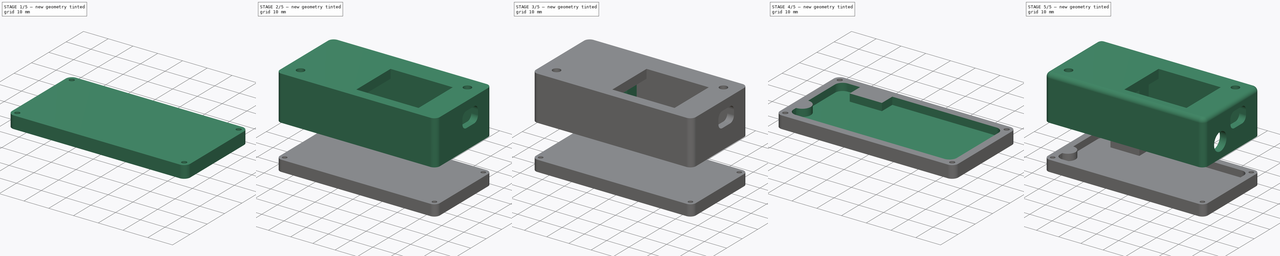
[diagram: build sequence overview — one tinted view per stage of 5, left to right]
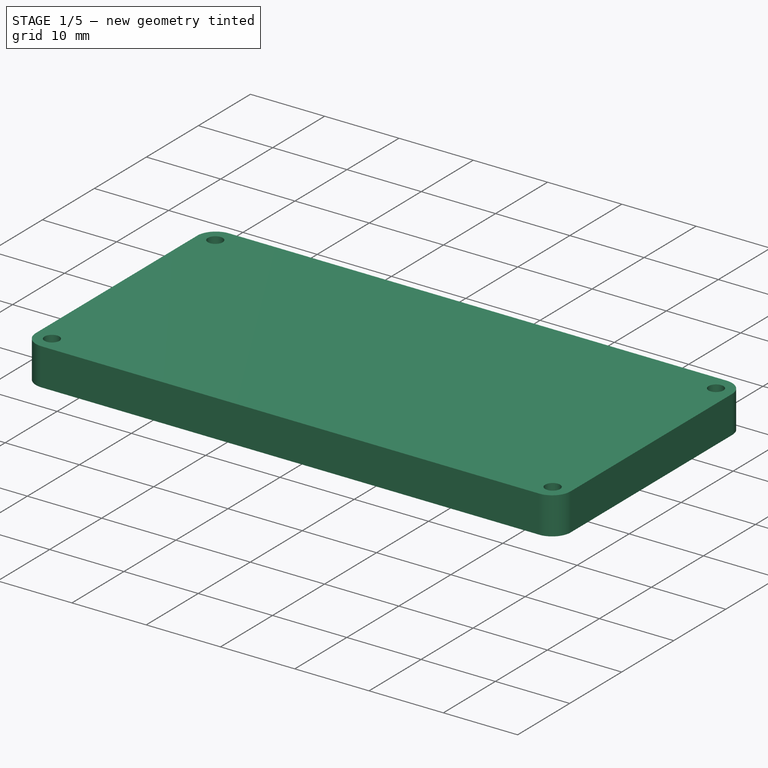
[diagram: stage 1 of 5 — iso view after this stage's code; geometry added in this stage tinted green]
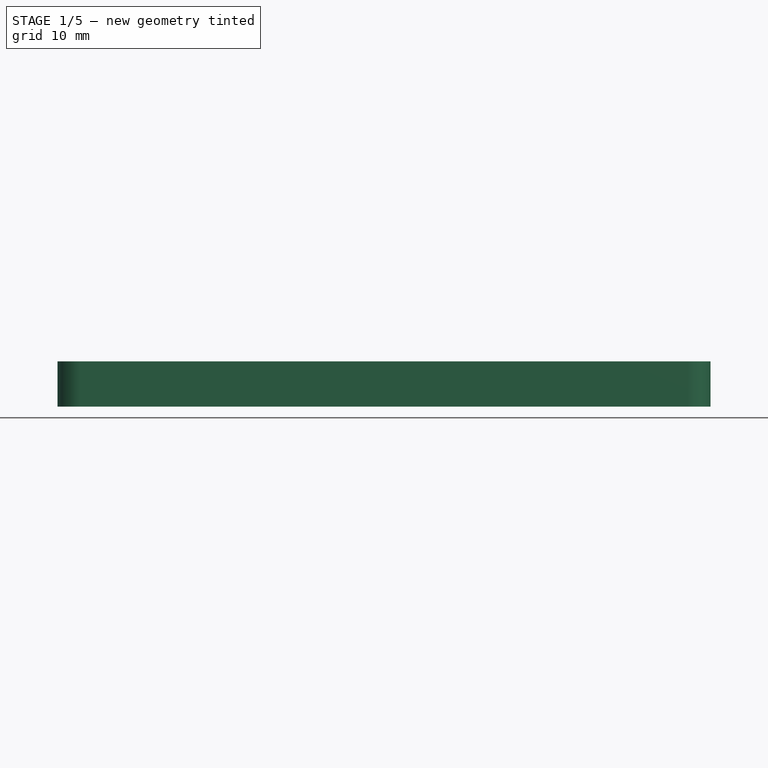
[diagram: stage 1 of 5 — front view after this stage's code; geometry added in this stage tinted green]
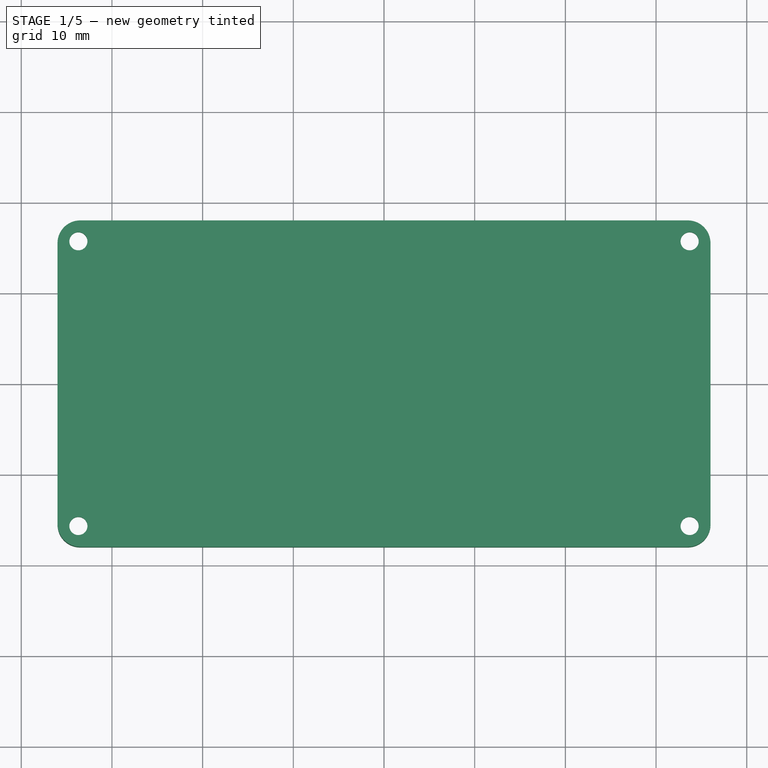
[diagram: stage 1 of 5 — top view after this stage's code; geometry added in this stage tinted green]
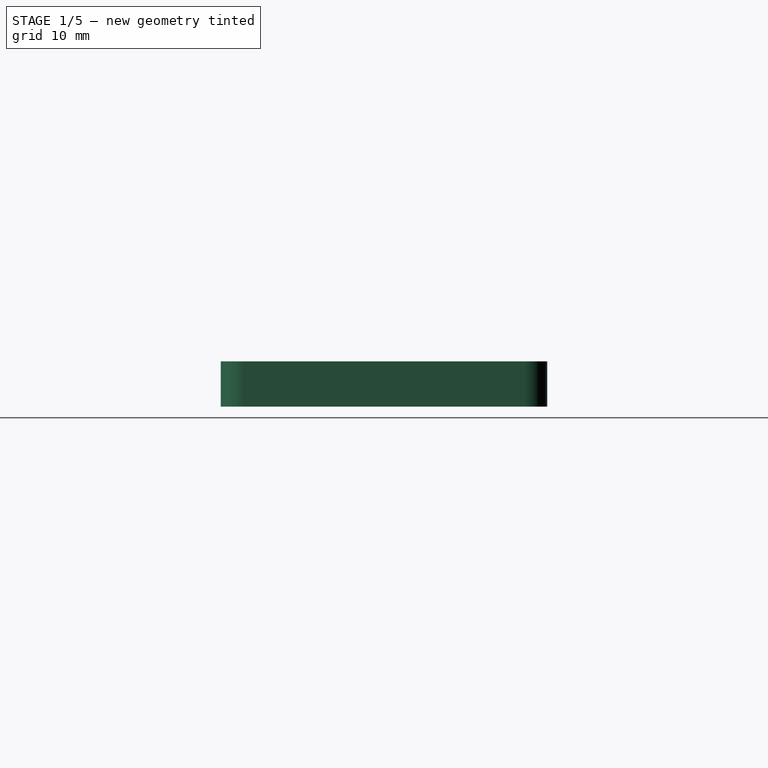
[diagram: stage 1 of 5 — right view after this stage's code; geometry added in this stage tinted green]
FCSTD DOCUMENT  (FreeCAD 0.19R21329 (Git))
Label: LEDLightsBox
License: All rights reserved
LicenseURL: http://en.wikipedia.org/wiki/All_rights_reserved
objects: Sketcher::SketchObject×14, PartDesign::Pocket×11, PartDesign::ShapeBinder×5, PartDesign::Pad×3, PartDesign::Body×2, Part::Fillet×2, Spreadsheet::Sheet×1, Part::Chamfer×1
note: 52 computed .brp shape members not serialized (recipe doc carries the construction recipe); baked Part::Feature solids carry a one-line shape summary decoded from their .brp

FEATURE [PartDesign::Body] Body
  Group = -> [Pad,Pocket,Pocket001,Sketch003,Pocket002,Pocket003,Pocket004,Pad001,Pocket005,Pocket006,Pocket007]
  Origin = -> Origin
  Tip = -> Pocket007
FEATURE [PartDesign::ShapeBinder] ShapeBinder
  Support = -> [Sketch001]
  TraceSupport = false
FEATURE [Sketcher::SketchObject] Sketch010  label="Sketch_LID_Exterior"
  AttachmentOffset = pos=(0,0,-20) rot=(0,0,1;0rad)
  ExternalGeometry = -> [ShapeBinder]
  MapMode = 5
  Placement = pos=(0,0,-20) rot=(0,0,1;0rad)
  Support = -> [XY_Plane001]
  sketch-geometry (8):
    g0: LineSegment StartX=-33.5 StartY=18 StartZ=0 EndX=33.5 EndY=18 EndZ=0
    g1: LineSegment StartX=36 StartY=15.5 StartZ=0 EndX=36 EndY=-15.5 EndZ=0
    g2: LineSegment StartX=33.5 StartY=-18 StartZ=0 EndX=-33.5 EndY=-18 EndZ=0
    g3: LineSegment StartX=-36 StartY=-15.5 StartZ=0 EndX=-36 EndY=15.5 EndZ=0
    g4: ArcOfCircle CenterX=-33.5 CenterY=15.5 CenterZ=0 NormalX=0 NormalY=0 NormalZ=1 AngleXU=0 Radius=2.5 StartAngle=1.5708 EndAngle=3.14159
    g5: ArcOfCircle CenterX=-33.5 CenterY=-15.5 CenterZ=0 NormalX=0 NormalY=0 NormalZ=1 AngleXU=0 Radius=2.5 StartAngle=3.14159 EndAngle=4.71239
    g6: ArcOfCircle CenterX=33.5 CenterY=-15.5 CenterZ=0 NormalX=0 NormalY=0 NormalZ=1 AngleXU=0 Radius=2.5 StartAngle=4.71239 EndAngle=6.28319
    g7: ArcOfCircle CenterX=33.5 CenterY=15.5 CenterZ=0 NormalX=0 NormalY=0 NormalZ=1 AngleXU=0 Radius=2.5 StartAngle=5e-16 EndAngle=1.5708
  constraints (15):
    c: Tangent(g0,g4) = 1.5708
    c: Tangent(g3,g4) = 1.5708
    c: Tangent(g3,g5) = 1.5708
    c: Tangent(g2,g5) = 1.5708
    c: Tangent(g2,g6) = 1.5708
    c: Tangent(g1,g6) = 1.5708
    c: Tangent(g1,g7) = 1.5708
    c: Tangent(g0,g7) = 1.5708
    c: Coincident(g0,g-4)
    c: Coincident(g3,g-5)
    c: Coincident(g3,g-6)
    c: Coincident(g2,g-7)
    c: Coincident(g2,g-8)
    c: Coincident(g1,g-9)
    c: Coincident(g1,g-10)
FEATURE [PartDesign::Pad] Pad002
  Length = 5
  Length2 = 100
  Profile = -> Sketch010
  Type = 0
FEATURE [PartDesign::ShapeBinder] ShapeBinder001
  Support = -> [Sketch]
  TraceSupport = false
FEATURE [PartDesign::ShapeBinder] ShapeBinder002
  Support = -> [Pocket007]
  TraceSupport = false
FEATURE [PartDesign::ShapeBinder] ShapeBinder003
  Support = -> [Pocket007]
  TraceSupport = false
FEATURE [Sketcher::SketchObject] Sketch011  label="Sketch_Lid_MainFace"
  ExternalGeometry = -> [ShapeBinder001,ShapeBinder002,ShapeBinder003]
  MapMode = 5
  Placement = pos=(0,0,-15) rot=(0,0,1;0rad)
  Support = -> [Pad002]
  sketch-geometry (14):
    g0: LineSegment StartX=33 StartY=12 StartZ=0 EndX=33 EndY=-12 EndZ=0
    g1: LineSegment StartX=30 StartY=-15 StartZ=0 EndX=-30 EndY=-15 EndZ=0
    g2: ArcOfCircle CenterX=-30.0134 CenterY=12.0135 CenterZ=0 NormalX=0 NormalY=0 NormalZ=1 AngleXU=0 Radius=2.98658 StartAngle=1.56629 EndAngle=3.1461
    g3: ArcOfCircle CenterX=-30 CenterY=-12 CenterZ=0 NormalX=0 NormalY=0 NormalZ=1 AngleXU=0 Radius=3 StartAngle=3.14159 EndAngle=4.71239
    g4: ArcOfCircle CenterX=30 CenterY=-12 CenterZ=0 NormalX=0 NormalY=0 NormalZ=1 AngleXU=0 Radius=3 StartAngle=4.71239 EndAngle=6.28319
    g5: ArcOfCircle CenterX=30 CenterY=12 CenterZ=0 NormalX=0 NormalY=0 NormalZ=1 AngleXU=0 Radius=3 StartAngle=2.6e-15 EndAngle=1.5708
    g6: LineSegment StartX=-25 StartY=15 StartZ=0 EndX=-25 EndY=9 EndZ=0
    g7: LineSegment StartX=-25 StartY=9 StartZ=0 EndX=-12 EndY=9 EndZ=0
    g8: LineSegment StartX=-12 StartY=9 StartZ=0 EndX=-12 EndY=15 EndZ=0
    g9: LineSegment StartX=-12 StartY=15 StartZ=0 EndX=30 EndY=15 EndZ=0
    g10: LineSegment StartX=-33 StartY=12 StartZ=0 EndX=-33 EndY=-3.5 EndZ=0
    g11: LineSegment StartX=-33 StartY=-10.5 StartZ=0 EndX=-33 EndY=-12 EndZ=0
    g12: ArcOfCircle CenterX=-33 CenterY=-7 CenterZ=0 NormalX=0 NormalY=0 NormalZ=1 AngleXU=0 Radius=3.5 StartAngle=4.71239 EndAngle=7.85398
    g13: LineSegment StartX=-30 StartY=15 StartZ=0 EndX=-25 EndY=15 EndZ=0
  constraints (29):
    c: Coincident(g-4,g2) = 1.5708
    c: Coincident(g-5,g2) = 1.5708
    c: Coincident(g-6,g3) = 1.5708
    c: Tangent(g1,g3) = 1.5708
    c: Tangent(g1,g4) = 1.5708
    c: Tangent(g0,g4) = 1.5708
    c: Tangent(g0,g5) = 1.5708
    c: Coincident(g1,g-7)
    c: Coincident(g1,g-8)
    c: Coincident(g6,g7)
    c: Coincident(g7,g8)
    c: Coincident(g-13,g7)
    c: Coincident(g6,g-13)
    c: Coincident(g6,g-12)
    c: Coincident(g8,g-11)
    c: Coincident(g0,g-9)
    c: Coincident(g0,g-9)
    c: Coincident(g5,g-3)
    c: Coincident(g9,g5)
    c: Coincident(g10,g2)
    c: Coincident(g11,g3)
    c: Coincident(g12,g11)
    c: Coincident(g10,g-14)
    c: Coincident(g12,g10)
    c: Coincident(g11,g-15)
    c: PointOnObject(g12,g-5)
    c: Coincident(g13,g2)
    c: Coincident(g13,g6)
    c: Coincident(g9,g8)
FEATURE [PartDesign::ShapeBinder] ShapeBinder004
  Support = -> [Sketch005]
  TraceSupport = false
FEATURE [Sketcher::SketchObject] Sketch012  label="Sketch_LID_ScrewHoles"
  ExternalGeometry = -> [ShapeBinder004]
  Support = -> [Pad002]
  sketch-geometry (4):
    g0: Circle CenterX=-33.7 CenterY=15.7 CenterZ=0 NormalX=0 NormalY=0 NormalZ=1 AngleXU=0 Radius=1
    g1: Circle CenterX=33.7 CenterY=15.7 CenterZ=0 NormalX=0 NormalY=0 NormalZ=1 AngleXU=0 Radius=1
    g2: Circle CenterX=33.7 CenterY=-15.7 CenterZ=0 NormalX=0 NormalY=0 NormalZ=1 AngleXU=0 Radius=1
    g3: Circle CenterX=-33.7 CenterY=-15.7 CenterZ=0 NormalX=0 NormalY=0 NormalZ=1 AngleXU=0 Radius=1
  constraints (8):
    c: Equal(g0,g-3)
    c: Equal(g1,g-4)
    c: Equal(g-5,g2)
    c: Equal(g3,g-6)
    c: Coincident(g0,g-3)
    c: Coincident(g1,g-4)
    c: Coincident(g2,g-5)
    c: Coincident(g3,g-6)
FEATURE [PartDesign::Pocket] Pocket008
  BaseFeature = -> Pad002
  Length = 5
  Length2 = 100
  Profile = -> Sketch012
  Type = 1
FEATURE [Sketcher::SketchObject] Sketch013  label="Sketch_LID_ScrewCounterisnk"
  ExternalGeometry = -> [Pocket008]
  MapMode = 5
  Placement = pos=(0,0,-20) rot=(1,0,0;3.14159rad)
  Support = -> [Pocket008]
  sketch-geometry (4):
    g0: Circle CenterX=-33.7 CenterY=15.7 CenterZ=0 NormalX=0 NormalY=0 NormalZ=1 AngleXU=0 Radius=2
    g1: Circle CenterX=33.7 CenterY=15.7 CenterZ=0 NormalX=0 NormalY=0 NormalZ=1 AngleXU=0 Radius=2
    g2: Circle CenterX=33.7 CenterY=-15.7 CenterZ=0 NormalX=0 NormalY=0 NormalZ=1 AngleXU=0 Radius=2
    g3: Circle CenterX=-33.7 CenterY=-15.7 CenterZ=0 NormalX=0 NormalY=0 NormalZ=1 AngleXU=0 Radius=2
  constraints (8):
    c: Diameter(g0) = 4
    c: Coincident(g0,g-3)
    c: Equal(g0,g1) = 3
    c: Equal(g0,g2) = 3
    c: Equal(g0,g3) = 3
    c: Coincident(g-4,g1)
    c: Coincident(g-5,g2)
    c: Coincident(g3,g-6)
FEATURE [PartDesign::Pocket] Pocket009
  BaseFeature = -> Pocket008
  Length = 3
  Length2 = 100
  Profile = -> Sketch013
  Type = 0
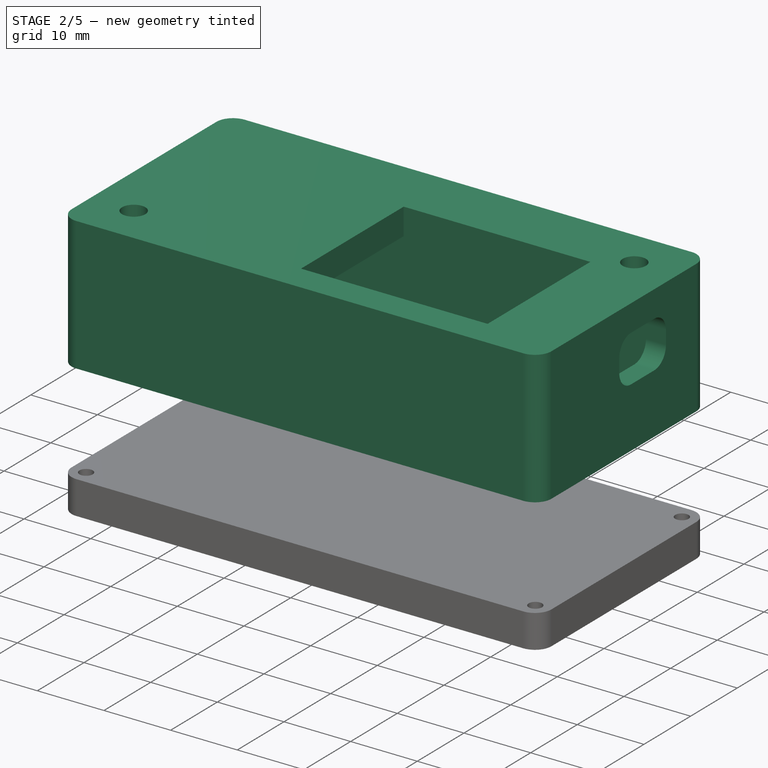
[diagram: stage 2 of 5 — iso view after this stage's code; geometry added in this stage tinted green]
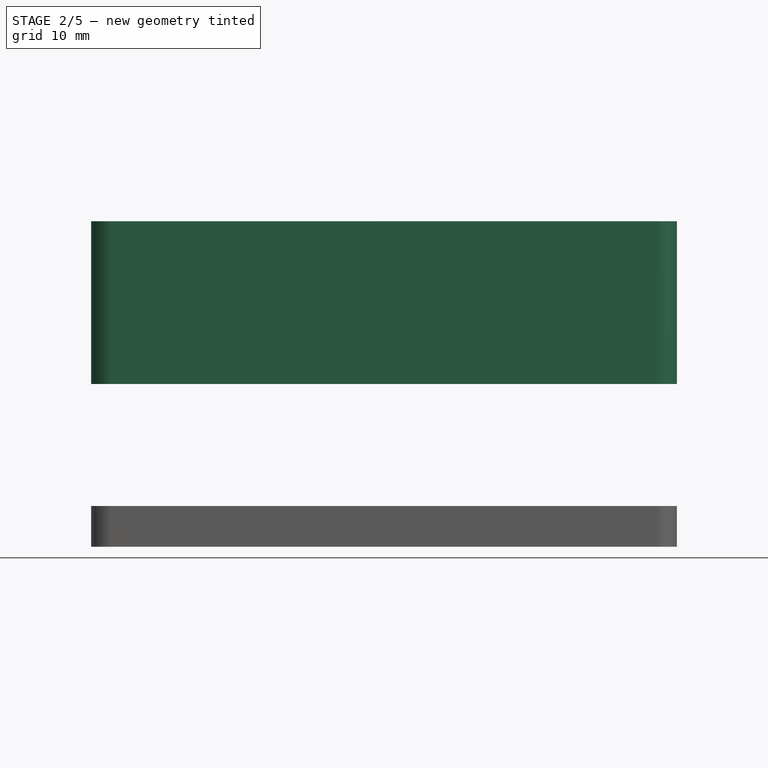
[diagram: stage 2 of 5 — front view after this stage's code; geometry added in this stage tinted green]
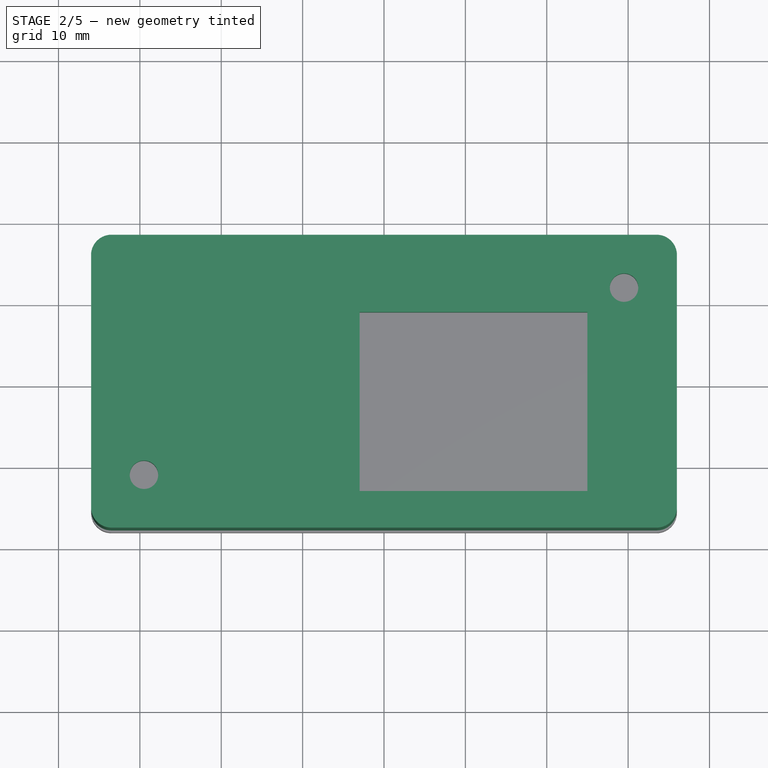
[diagram: stage 2 of 5 — top view after this stage's code; geometry added in this stage tinted green]
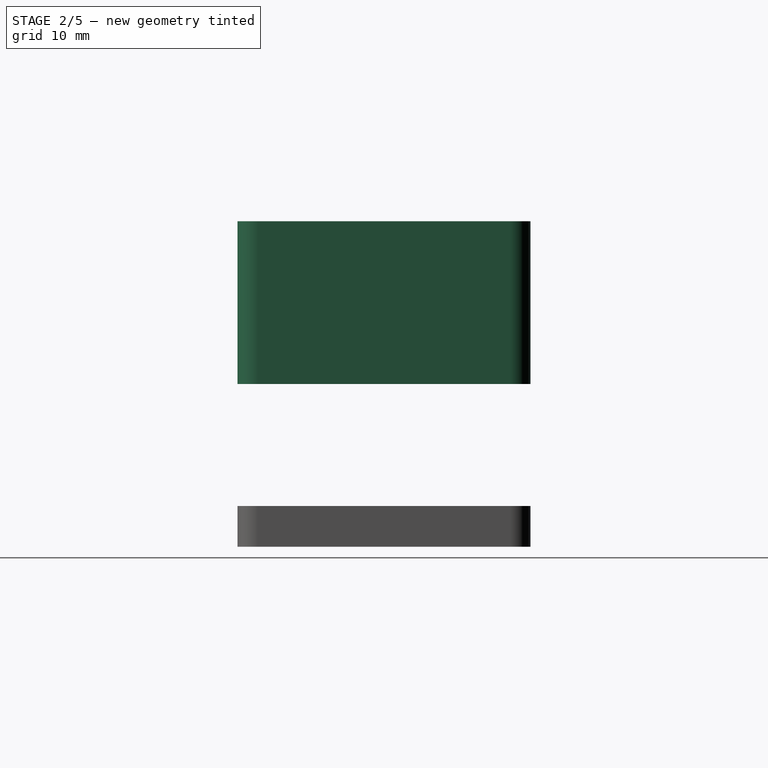
[diagram: stage 2 of 5 — right view after this stage's code; geometry added in this stage tinted green]
FEATURE [Sketcher::SketchObject] Sketch  label="Sketch_MainFace"
  sketch-geometry (8):
    g0: LineSegment StartX=-30 StartY=15 StartZ=0 EndX=30 EndY=15 EndZ=0
    g1: LineSegment StartX=33 StartY=12 StartZ=0 EndX=33 EndY=-12 EndZ=0
    g2: LineSegment StartX=30 StartY=-15 StartZ=0 EndX=-30 EndY=-15 EndZ=0
    g3: LineSegment StartX=-33 StartY=-12 StartZ=0 EndX=-33 EndY=12 EndZ=0
    g4: ArcOfCircle CenterX=-30 CenterY=12 CenterZ=0 NormalX=0 NormalY=0 NormalZ=1 AngleXU=0 Radius=3 StartAngle=1.5708 EndAngle=3.14159
    g5: ArcOfCircle CenterX=30 CenterY=12 CenterZ=0 NormalX=0 NormalY=0 NormalZ=1 AngleXU=0 Radius=3 StartAngle=0 EndAngle=1.5708
    g6: ArcOfCircle CenterX=30 CenterY=-12 CenterZ=0 NormalX=0 NormalY=0 NormalZ=1 AngleXU=0 Radius=3 StartAngle=4.71239 EndAngle=6.28319
    g7: ArcOfCircle CenterX=-30 CenterY=-12 CenterZ=0 NormalX=0 NormalY=0 NormalZ=1 AngleXU=0 Radius=3 StartAngle=3.14159 EndAngle=4.71239
  constraints (18):
    c: Tangent(g0,g4) = 1.5708
    c: Tangent(g3,g4) = 1.5708
    c: Tangent(g0,g5) = 1.5708
    c: Tangent(g1,g5) = 1.5708
    c: Tangent(g2,g6) = 1.5708
    c: Tangent(g1,g6) = 1.5708
    c: Tangent(g2,g7) = 1.5708
    c: Tangent(g3,g7) = 1.5708
    c: Diameter(g4) = 6
    c: Equal(g4,g5)
    c: Equal(g4,g6)
    c: Equal(g4,g7)
    c: Distance(g3,g1) = 66
    c: Distance(g0,g2) = 30
    c: Parallel(g0,g2)
    c: Parallel(g3,g1)
    c: Symmetric(g0,g2,g-1)
    c: Symmetric(g3,g1,g-2)
FEATURE [Sketcher::SketchObject] Sketch001  label="Sketch_Exterior"
  ExternalGeometry = -> [Sketch]
  MapMode = 2
  Support = -> [Sketch]
  sketch-geometry (8):
    g0: LineSegment StartX=-33.5 StartY=18 StartZ=0 EndX=33.5 EndY=18 EndZ=0
    g1: LineSegment StartX=36 StartY=15.5 StartZ=0 EndX=36 EndY=-15.5 EndZ=0
    g2: LineSegment StartX=33.5 StartY=-18 StartZ=0 EndX=-33.5 EndY=-18 EndZ=0
    g3: LineSegment StartX=-36 StartY=-15.5 StartZ=0 EndX=-36 EndY=15.5 EndZ=0
    g4: ArcOfCircle CenterX=-33.5 CenterY=15.5 CenterZ=0 NormalX=0 NormalY=0 NormalZ=1 AngleXU=0 Radius=2.5 StartAngle=1.5708 EndAngle=3.14159
    g5: ArcOfCircle CenterX=33.5 CenterY=15.5 CenterZ=0 NormalX=0 NormalY=0 NormalZ=1 AngleXU=0 Radius=2.5 StartAngle=5e-16 EndAngle=1.5708
    g6: ArcOfCircle CenterX=33.5 CenterY=-15.5 CenterZ=0 NormalX=0 NormalY=0 NormalZ=1 AngleXU=0 Radius=2.5 StartAngle=4.71239 EndAngle=6.28319
    g7: ArcOfCircle CenterX=-33.5 CenterY=-15.5 CenterZ=0 NormalX=0 NormalY=0 NormalZ=1 AngleXU=0 Radius=2.5 StartAngle=3.14159 EndAngle=4.71239
  constraints (18):
    c: Tangent(g0,g4) = 1.5708
    c: Tangent(g3,g4) = 1.5708
    c: Tangent(g0,g5) = 1.5708
    c: Tangent(g1,g5) = 1.5708
    c: Tangent(g1,g6) = 1.5708
    c: Tangent(g2,g6) = 1.5708
    c: Tangent(g2,g7) = 1.5708
    c: Tangent(g3,g7) = 1.5708
    c: Parallel(g0,g-3)
    c: Parallel(g3,g-5)
    c: Parallel(g2,g-7)
    c: Parallel(g-9,g1)
    c: Equal(g4,g6)
    c: Symmetric(g3,g1,g-2)
    c: Symmetric(g2,g0,g-1)
    c: DistanceY(g-10,g0) = 3
    c: DistanceX(g-10,g1) = 3
    c: Diameter(g4) = 5
FEATURE [PartDesign::Pad] Pad
  Length = 20
  Length2 = 100
  Profile = -> Sketch001
  Type = 0
  expr: Length = <<vars>>.height
FEATURE [Spreadsheet::Sheet] Spreadsheet  label="vars"
  cells = A1=height; B1(height)=20
FEATURE [PartDesign::Pocket] Pocket
  BaseFeature = -> Pad
  Length = 16
  Length2 = 100
  Profile = -> Sketch
  Reversed = true
  Type = 0
  expr: Length = <<vars>>.height - 4
FEATURE [Sketcher::SketchObject] Sketch002  label="Sketch_MainFace_Holes"
  AttachmentOffset = pos=(0,0,20) rot=(0,0,1;0rad)
  ExternalGeometry = -> [Sketch]
  MapMode = 2
  Placement = pos=(0,0,20) rot=(0,0,1;0rad)
  Support = -> [Sketch]
  expr: .AttachmentOffset.Base.z = <<vars>>.height
  sketch-geometry (6):
    g0: Circle CenterX=-29.5 CenterY=-11.5 CenterZ=0 NormalX=0 NormalY=0 NormalZ=1 AngleXU=0 Radius=1.75
    g1: Circle CenterX=29.5 CenterY=11.5 CenterZ=0 NormalX=0 NormalY=0 NormalZ=1 AngleXU=0 Radius=1.75
    g2: LineSegment StartX=-3 StartY=8.5 StartZ=0 EndX=25 EndY=8.5 EndZ=0
    g3: LineSegment StartX=25 StartY=8.5 StartZ=0 EndX=25 EndY=-13.5 EndZ=0
    g4: LineSegment StartX=25 StartY=-13.5 StartZ=0 EndX=-3 EndY=-13.5 EndZ=0
    g5: LineSegment StartX=-3 StartY=-13.5 StartZ=0 EndX=-3 EndY=8.5 EndZ=0
  constraints (17):
    c: Diameter(g0) = 3.5
    c: Equal(g0,g1) = 3.5
    c: DistanceX(g0,g1) = 59
    c: DistanceY(g1,g0) = -23
    c: Symmetric(g0,g1,g-1)
    c: Coincident(g2,g3)
    c: Coincident(g3,g4)
    c: Coincident(g4,g5)
    c: Coincident(g5,g2)
    c: Distance(g2) = 28
    c: Distance(g5) = 22
    c: Equal(g2,g4)
    c: Equal(g5,g3)
    c: Perpendicular(g3,g2)
    c: Parallel(g2,g-3)
    c: DistanceX(g3,g1) = 4.5
    c: DistanceY(g-4,g3) = 1.5
FEATURE [PartDesign::Pocket] Pocket001
  BaseFeature = -> Pocket
  Length = 5
  Length2 = 100
  Profile = -> Sketch002
  Type = 2
FEATURE [Sketcher::SketchObject] Sketch003  label="Sketch_USB_Hole"
  ExternalGeometry = -> [Pocket001]
  MapMode = 5
  Placement = pos=(33,0,0) rot=(0.57735,-0.57735,-0.57735;2.0944rad)
  Support = -> [Pocket001]
  sketch-geometry (8):
    g0: LineSegment StartX=-6.5 StartY=16 StartZ=0 EndX=-1.5 EndY=16 EndZ=0
    g1: LineSegment StartX=1 StartY=13.5 StartZ=0 EndX=1 EndY=11.5 EndZ=0
    g2: LineSegment StartX=-1.5 StartY=9 StartZ=0 EndX=-6.5 EndY=9 EndZ=0
    g3: LineSegment StartX=-9 StartY=11.5 StartZ=0 EndX=-9 EndY=13.5 EndZ=0
    g4: ArcOfCircle CenterX=-6.5 CenterY=13.5 CenterZ=0 NormalX=0 NormalY=0 NormalZ=1 AngleXU=0 Radius=2.5 StartAngle=1.5708 EndAngle=3.14159
    g5: ArcOfCircle CenterX=-1.5 CenterY=13.5 CenterZ=0 NormalX=0 NormalY=0 NormalZ=1 AngleXU=0 Radius=2.5 StartAngle=7.2e-15 EndAngle=1.5708
    g6: ArcOfCircle CenterX=-1.5 CenterY=11.5 CenterZ=0 NormalX=0 NormalY=0 NormalZ=1 AngleXU=0 Radius=2.5 StartAngle=4.71239 EndAngle=6.28319
    g7: ArcOfCircle CenterX=-6.5 CenterY=11.5 CenterZ=0 NormalX=0 NormalY=0 NormalZ=1 AngleXU=0 Radius=2.5 StartAngle=3.14159 EndAngle=4.71239
  constraints (20):
    c: Tangent(g0,g4) = 1.5708
    c: Tangent(g3,g4) = 1.5708
    c: Tangent(g0,g5) = 1.5708
    c: Tangent(g1,g5) = 1.5708
    c: Tangent(g1,g6) = 1.5708
    c: Tangent(g2,g6) = 1.5708
    c: Tangent(g2,g7) = 1.5708
    c: Tangent(g3,g7) = 1.5708
    c: Diameter(g4) = 5
    c: Equal(g4,g5)
    c: Equal(g4,g6)
    c: Equal(g4,g7)
    c: Equal(g0,g2)
    c: Equal(g3,g1)
    c: Parallel(g0,g-3)
    c: Perpendicular(g3,g0)
    c: Distance(g3) = 2
    c: Distance(g2) = 5
    c: DistanceX(g-3,g3) = 3
    c: DistanceY(g0,g-3) = 0
FEATURE [PartDesign::Pocket] Pocket002
  BaseFeature = -> Pocket001
  Length = 5
  Length2 = 100
  Profile = -> Sketch003
  Type = 2
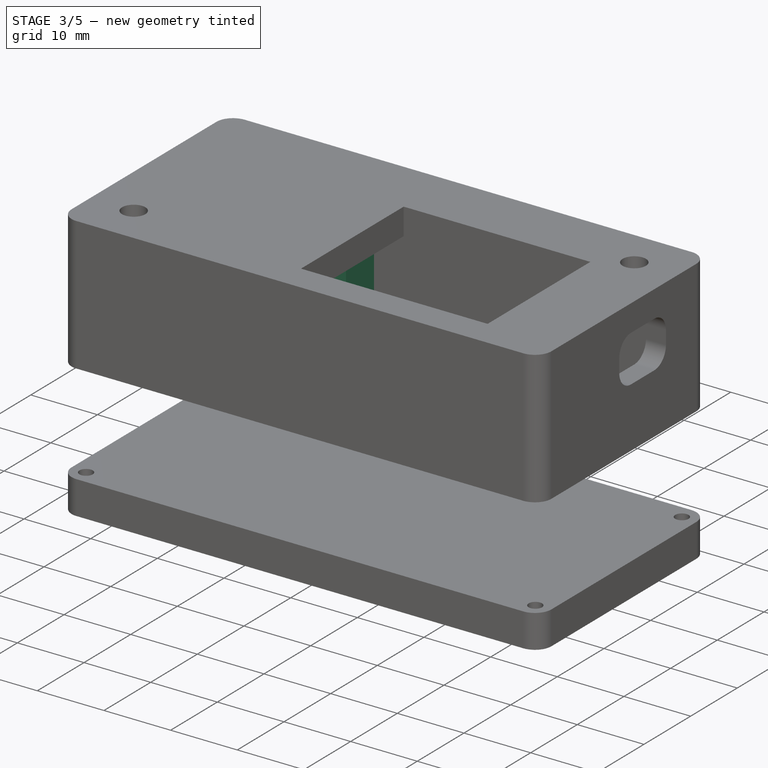
[diagram: stage 3 of 5 — iso view after this stage's code; geometry added in this stage tinted green]
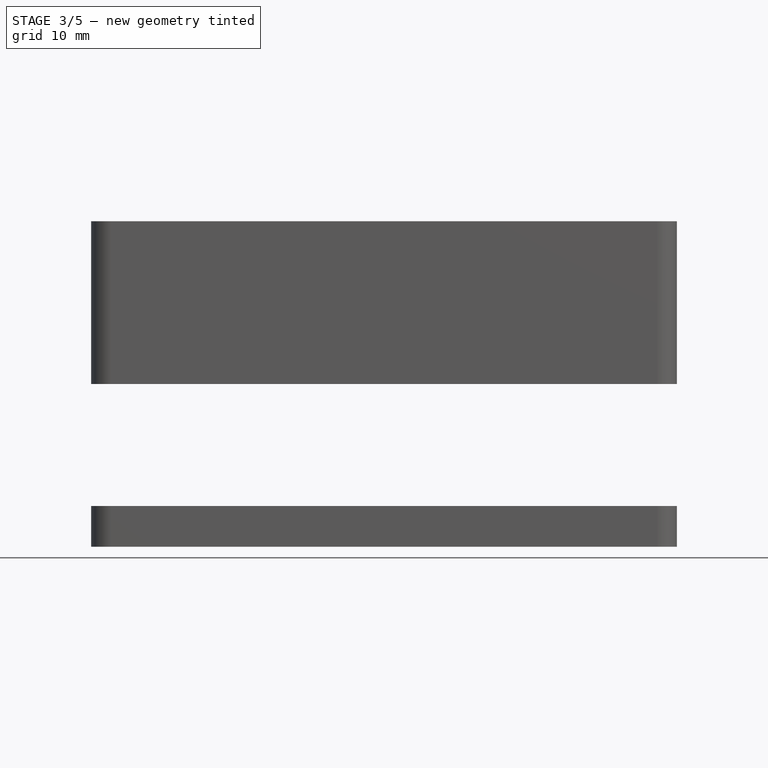
[diagram: stage 3 of 5 — front view after this stage's code; geometry added in this stage tinted green]
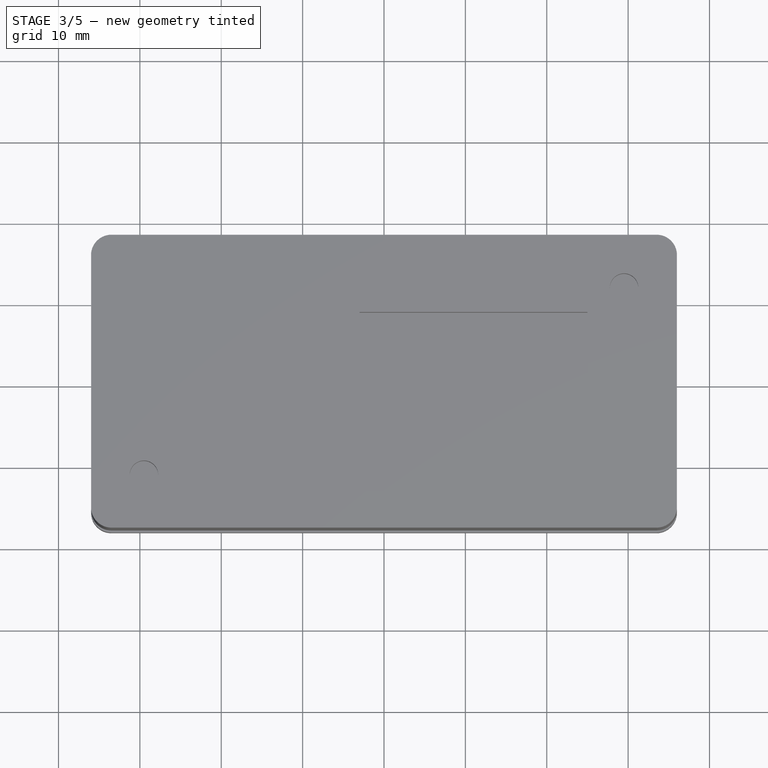
[diagram: stage 3 of 5 — top view after this stage's code; geometry added in this stage tinted green]
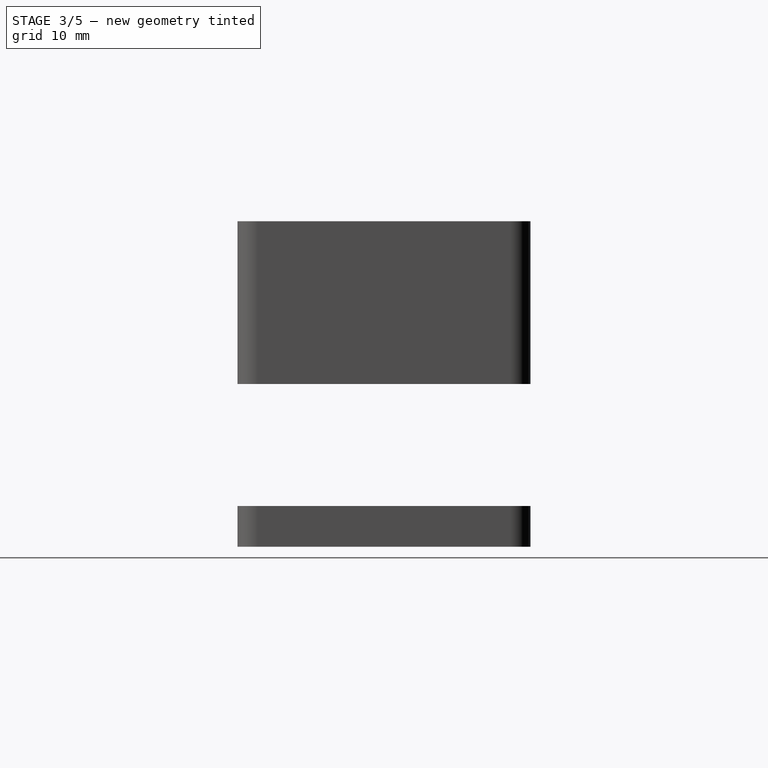
[diagram: stage 3 of 5 — right view after this stage's code; geometry added in this stage tinted green]
FEATURE [Sketcher::SketchObject] Sketch004  label="Sketch_PocketESP32"
  ExternalGeometry = -> [Pocket002,Sketch002]
  MapMode = 5
  Placement = pos=(0,0,16) rot=(1,0,0;3.14159rad)
  Support = -> [Pocket002]
  sketch-geometry (4):
    g0: LineSegment StartX=-32 StartY=9 StartZ=0 EndX=-5 EndY=9 EndZ=0
    g1: LineSegment StartX=-5 StartY=9 StartZ=0 EndX=-5 EndY=-9 EndZ=0
    g2: LineSegment StartX=-5 StartY=-9 StartZ=0 EndX=-32 EndY=-9 EndZ=0
    g3: LineSegment StartX=-32 StartY=-9 StartZ=0 EndX=-32 EndY=9 EndZ=0
  constraints (11):
    c: Coincident(g0,g1)
    c: Coincident(g1,g2)
    c: Coincident(g2,g3)
    c: Coincident(g3,g0)
    c: Equal(g0,g2)
    c: Equal(g3,g1)
    c: Perpendicular(g1,g0)
    c: Distance(g0) = 27
    c: Distance(g1) = 18
    c: Symmetric(g0,g1,g-1)
    c: DistanceX(g0,g-5) = 2.5
FEATURE [PartDesign::Pocket] Pocket003
  BaseFeature = -> Pocket002
  Length = 3
  Length2 = 100
  Profile = -> Sketch004
  Type = 0
FEATURE [Sketcher::SketchObject] Sketch005  label="Sketch_ScrewHoles"
  ExternalGeometry = -> [Sketch001]
  sketch-geometry (4):
    g0: Circle CenterX=-33.7 CenterY=-15.7 CenterZ=0 NormalX=0 NormalY=0 NormalZ=1 AngleXU=0 Radius=1
    g1: Circle CenterX=33.7 CenterY=-15.7 CenterZ=0 NormalX=0 NormalY=0 NormalZ=1 AngleXU=0 Radius=1
    g2: Circle CenterX=33.7 CenterY=15.7 CenterZ=0 NormalX=0 NormalY=0 NormalZ=1 AngleXU=0 Radius=1
    g3: Circle CenterX=-33.7 CenterY=15.7 CenterZ=0 NormalX=0 NormalY=0 NormalZ=1 AngleXU=0 Radius=1
  constraints (9):
    c: Diameter(g0) = 2
    c: Equal(g0,g1) = 2
    c: Equal(g0,g2) = 2
    c: Equal(g0,g3) = 2
    c: Symmetric(g0,g2,g-1)
    c: Symmetric(g0,g1,g-2)
    c: Symmetric(g3,g1,g-1)
    c: DistanceY(g-3,g0) = 2.3
    c: DistanceX(g-3,g0) = 2.3
FEATURE [PartDesign::Pocket] Pocket004
  BaseFeature = -> Pocket003
  Length = 10
  Length2 = 100
  Profile = -> Sketch005
  Reversed = true
  Type = 0
FEATURE [Sketcher::SketchObject] Sketch006  label="Sketch_Button_Hole"
  ExternalGeometry = -> [Pocket004]
  MapMode = 5
  Placement = pos=(0,15,0) rot=(1,0,0;1.5708rad)
  Support = -> [Pocket004]
  sketch-geometry (8):
    g0: LineSegment StartX=-21 StartY=10 StartZ=0 EndX=-16 EndY=10 EndZ=0
    g1: LineSegment StartX=-14 StartY=8 StartZ=0 EndX=-14 EndY=3 EndZ=0
    g2: LineSegment StartX=-16 StartY=1 StartZ=0 EndX=-21 EndY=1 EndZ=0
    g3: LineSegment StartX=-23 StartY=3 StartZ=0 EndX=-23 EndY=8 EndZ=0
    g4: ArcOfCircle CenterX=-16 CenterY=8 CenterZ=0 NormalX=0 NormalY=0 NormalZ=1 AngleXU=0 Radius=2 StartAngle=1e-15 EndAngle=1.5708
    g5: ArcOfCircle CenterX=-21 CenterY=8 CenterZ=0 NormalX=0 NormalY=0 NormalZ=1 AngleXU=0 Radius=2 StartAngle=1.5708 EndAngle=3.14159
    g6: ArcOfCircle CenterX=-21 CenterY=3 CenterZ=0 NormalX=0 NormalY=0 NormalZ=1 AngleXU=0 Radius=2 StartAngle=3.14159 EndAngle=4.71239
    g7: ArcOfCircle CenterX=-16 CenterY=3 CenterZ=0 NormalX=0 NormalY=0 NormalZ=1 AngleXU=0 Radius=2 StartAngle=4.71239 EndAngle=6.28319
  constraints (20):
    c: Equal(g0,g1)
    c: Equal(g0,g3)
    c: Equal(g2,g0)
    c: Tangent(g0,g4) = 1.5708
    c: Tangent(g1,g4) = 1.5708
    c: Tangent(g0,g5) = 1.5708
    c: Tangent(g3,g5) = 1.5708
    c: Tangent(g3,g6) = 1.5708
    c: Tangent(g2,g6) = 1.5708
    c: Tangent(g2,g7) = 1.5708
    c: Tangent(g1,g7) = 1.5708
    c: Parallel(g0,g2)
    c: Parallel(g3,g1)
    c: Diameter(g5) = 4
    c: Equal(g5,g4)
    c: Perpendicular(g1,g0)
    c: Distance(g0) = 5
    c: DistanceY(g0,g-4) = 6
    c: DistanceX(g-4,g3) = 7
    c: Parallel(g0,g-3)
FEATURE [Sketcher::SketchObject] Sketch007  label="Sketch_Button_Support"
  ExternalGeometry = -> [Sketch006]
  MapMode = 5
  Placement = pos=(0,15,0) rot=(1,0,0;1.5708rad)
  Support = -> [Pocket004]
  sketch-geometry (4):
    g0: LineSegment StartX=-25 StartY=11 StartZ=0 EndX=-12 EndY=11 EndZ=0
    g1: LineSegment StartX=-12 StartY=11 StartZ=0 EndX=-12 EndY=0 EndZ=0
    g2: LineSegment StartX=-12 StartY=0 StartZ=0 EndX=-25 EndY=-4e-16 EndZ=0
    g3: LineSegment StartX=-25 StartY=-4e-16 StartZ=0 EndX=-25 EndY=11 EndZ=0
  constraints (12):
    c: Coincident(g0,g1)
    c: Coincident(g1,g2)
    c: Coincident(g2,g3)
    c: Coincident(g3,g0)
    c: Equal(g0,g2)
    c: Distance(g0) = 13
    c: Perpendicular(g1,g0)
    c: Parallel(g0,g-3)
    c: DistanceY(g-3,g0) = 1
    c: DistanceX(g-4,g0) = 2
    c: Distance(g3) = 11
    c: Equal(g3,g1)
FEATURE [PartDesign::Pad] Pad001
  BaseFeature = -> Pocket004
  Length = 6
  Length2 = 100
  Profile = -> Sketch007
  Type = 0
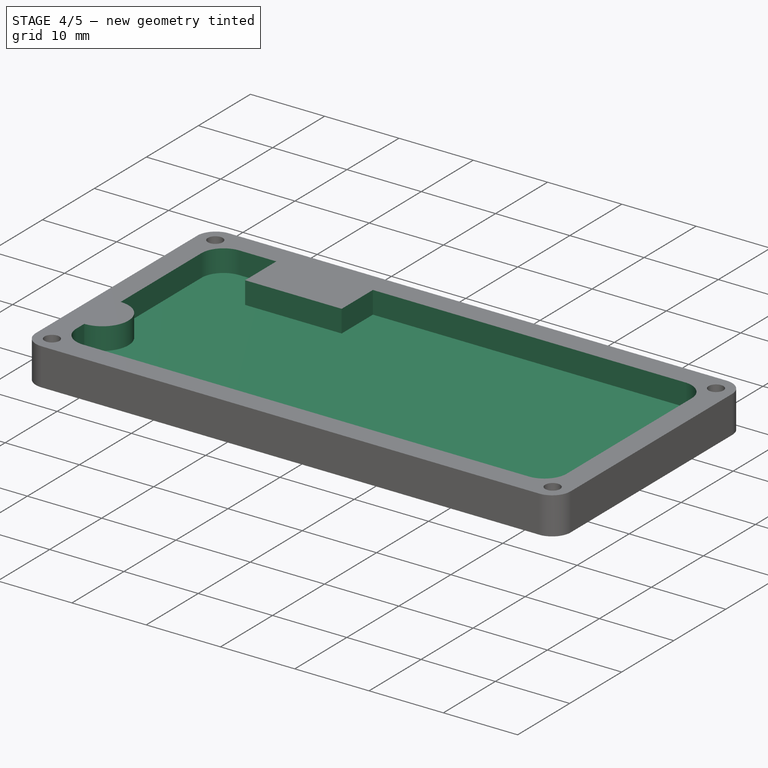
[diagram: stage 4 of 5 — iso view after this stage's code; geometry added in this stage tinted green]
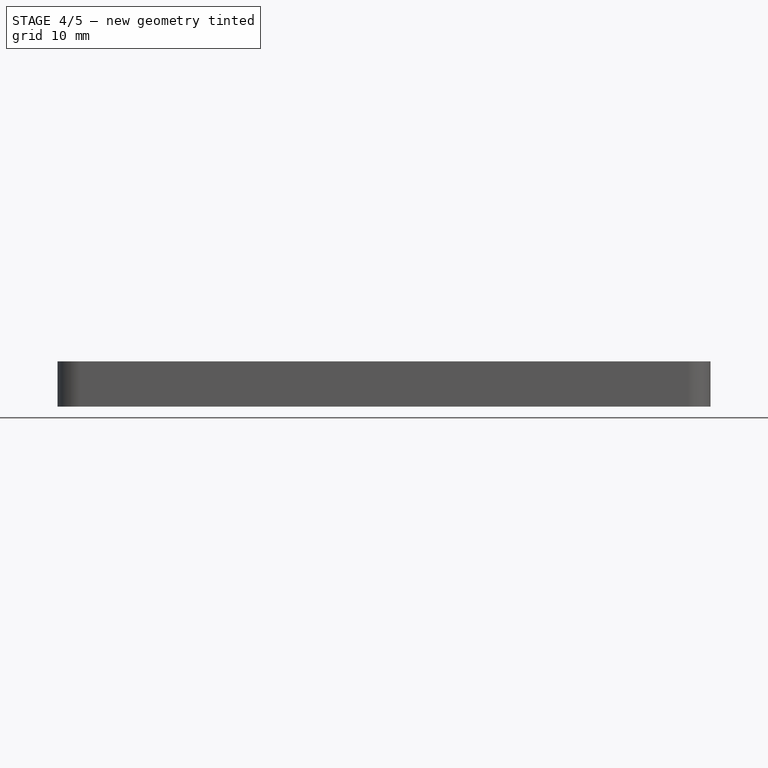
[diagram: stage 4 of 5 — front view after this stage's code; geometry added in this stage tinted green]
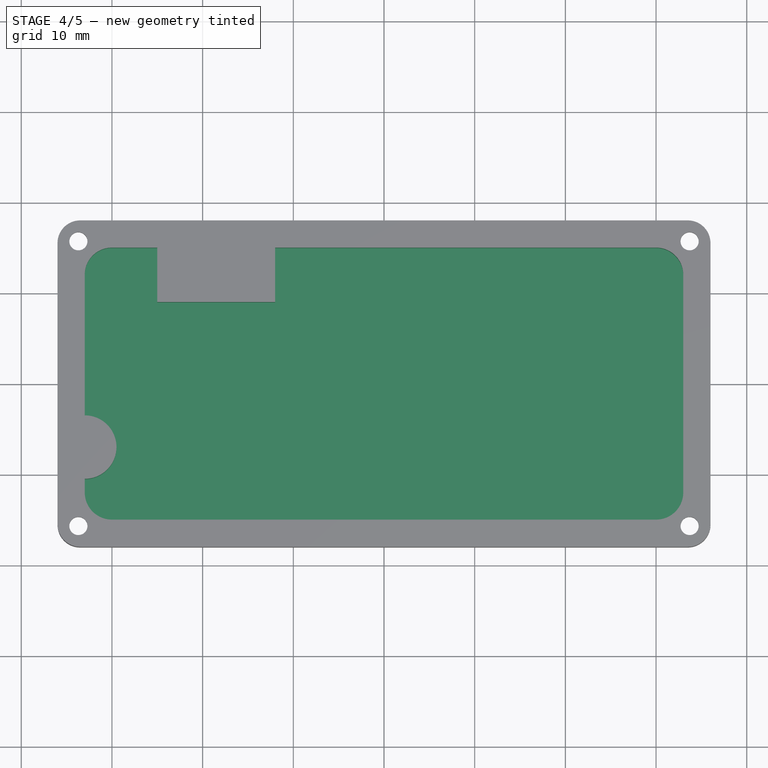
[diagram: stage 4 of 5 — top view after this stage's code; geometry added in this stage tinted green]
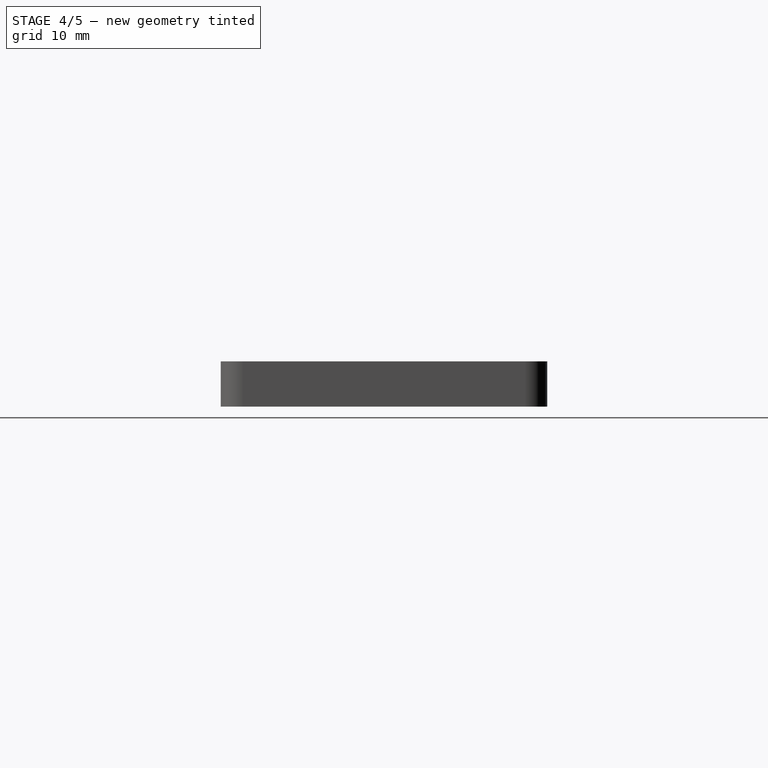
[diagram: stage 4 of 5 — right view after this stage's code; geometry added in this stage tinted green]
FEATURE [PartDesign::Pocket] Pocket005
  BaseFeature = -> Pad001
  Length = 5
  Length2 = 10
  Profile = -> Sketch006
  Type = 4
FEATURE [Sketcher::SketchObject] Sketch008  label="Sketch_DCPower_Hole"
  ExternalGeometry = -> [Pocket005]
  Placement = pos=(36,8e-15,0) rot=(0.57735,0.57735,0.57735;2.0944rad)
  sketch-geometry (1):
    g0: Circle CenterX=-7.5 CenterY=7 CenterZ=0 NormalX=0 NormalY=0 NormalZ=1 AngleXU=0 Radius=4
  constraints (1):
    c: Diameter(g0) = 8
FEATURE [PartDesign::Pocket] Pocket006
  BaseFeature = -> Pocket005
  Length = 5
  Length2 = 100
  Profile = -> Sketch008
  Type = 2
FEATURE [Sketcher::SketchObject] Sketch009  label="Sketch_StripWires_Hole"
  ExternalGeometry = -> [Pocket006]
  MapMode = 5
  Placement = pos=(-36,-8.3e-15,0) rot=(0.57735,-0.57735,-0.57735;2.0944rad)
  Support = -> [Pocket006]
  sketch-geometry (1):
    g0: Circle CenterX=7 CenterY=4e-16 CenterZ=0 NormalX=0 NormalY=0 NormalZ=1 AngleXU=0 Radius=3.5
  constraints (3):
    c: Diameter(g0) = 7
    c: PointOnObject(g0,g-3)
    c: Distance(g0,g-3) = 5
FEATURE [PartDesign::Pocket] Pocket007
  BaseFeature = -> Pocket006
  Length = 5
  Length2 = 100
  Profile = -> Sketch009
  Type = 2
FEATURE [PartDesign::Pocket] Pocket010
  BaseFeature = -> Pocket009
  Length = 3
  Length2 = 100
  Profile = -> Sketch011
  Type = 0
FEATURE [PartDesign::Body] Body001  label="Body_Lid"
  Group = -> [Sketch010,ShapeBinder,Pad002,Sketch011,ShapeBinder001,ShapeBinder002,ShapeBinder003,ShapeBinder004,Sketch012,Pocket008,Sketch013,Pocket009,Pocket010]
  Origin = -> Origin001
  Tip = -> Pocket010
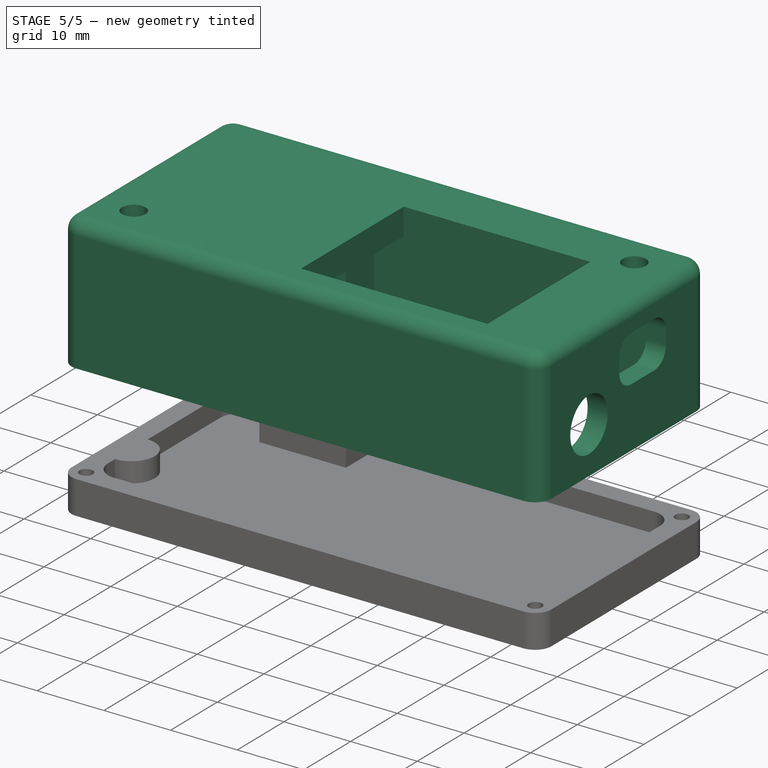
[diagram: stage 5 of 5 — iso view after this stage's code; geometry added in this stage tinted green]
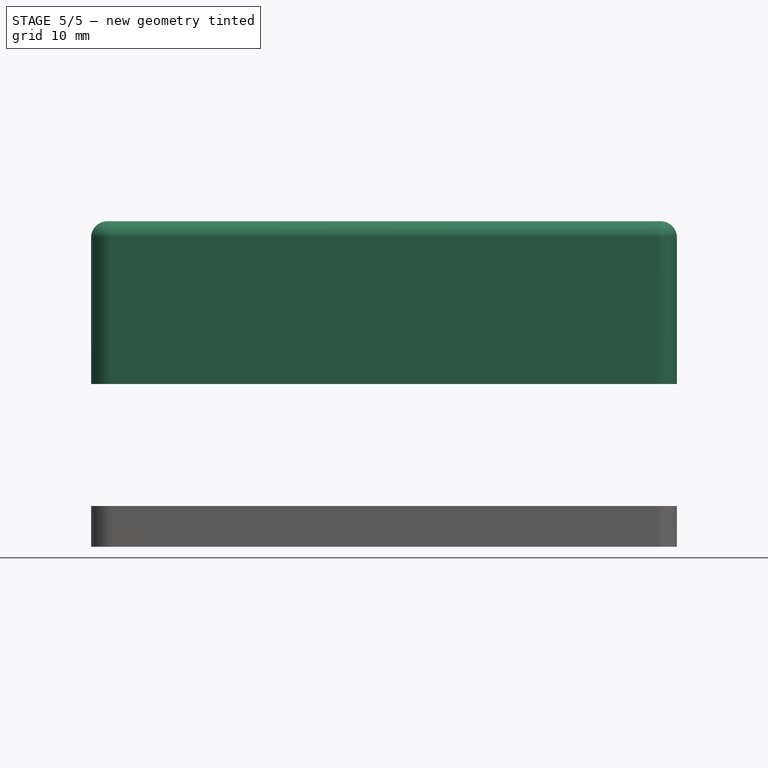
[diagram: stage 5 of 5 — front view after this stage's code; geometry added in this stage tinted green]
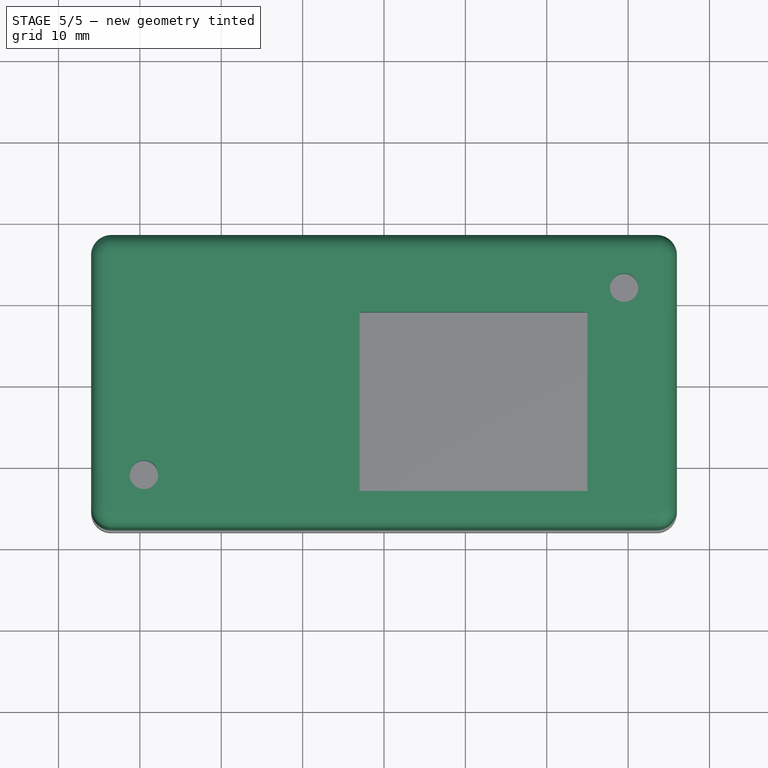
[diagram: stage 5 of 5 — top view after this stage's code; geometry added in this stage tinted green]
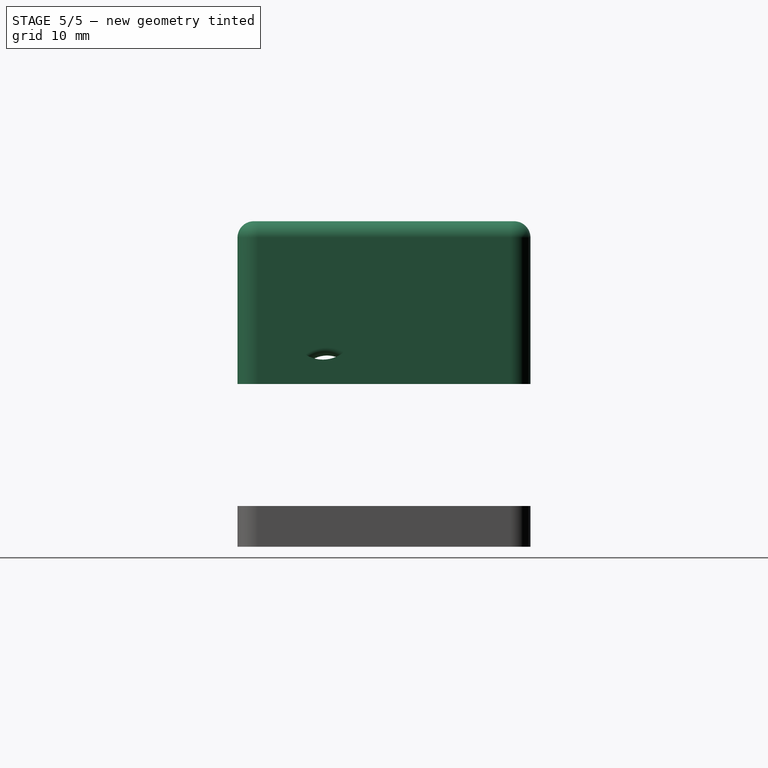
[diagram: stage 5 of 5 — right view after this stage's code; geometry added in this stage tinted green]
FEATURE [Part::Chamfer] Chamfer
  Base = -> Pocket007
  Edges = 1 edges r=0.8: [Edge152]
FEATURE [Part::Fillet] Fillet
  Base = -> Chamfer
  Edges = 2 edges r=1: [Edge113,Edge115]
FEATURE [Part::Fillet] Fillet001
  Base = -> Fillet
  Edges = 8 edges r=2: [Edge33,Edge37,Edge39,Edge51,Edge55,Edge69,Edge76,Edge80]
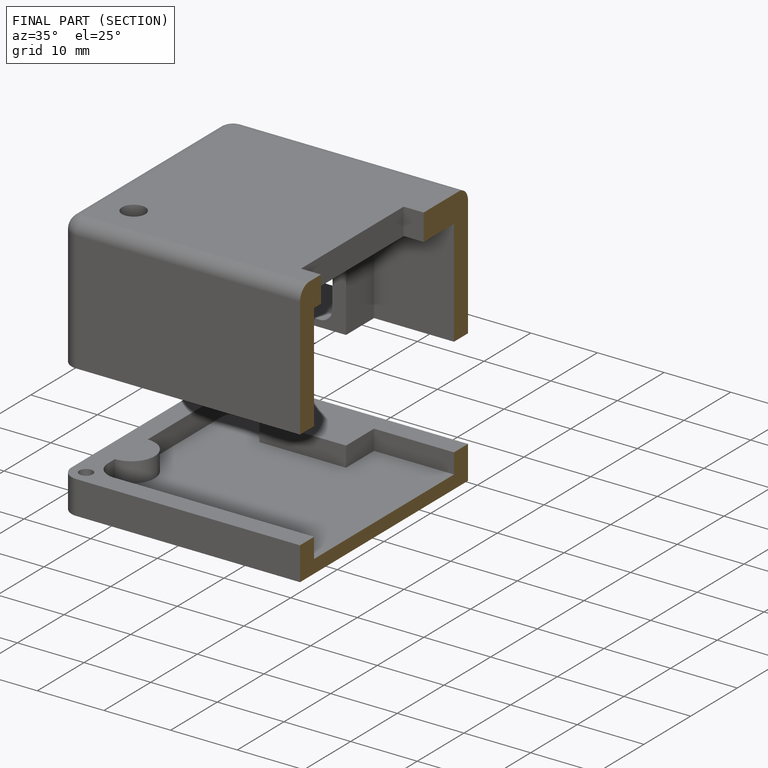
[diagram: finished part — half-section view (interior)]
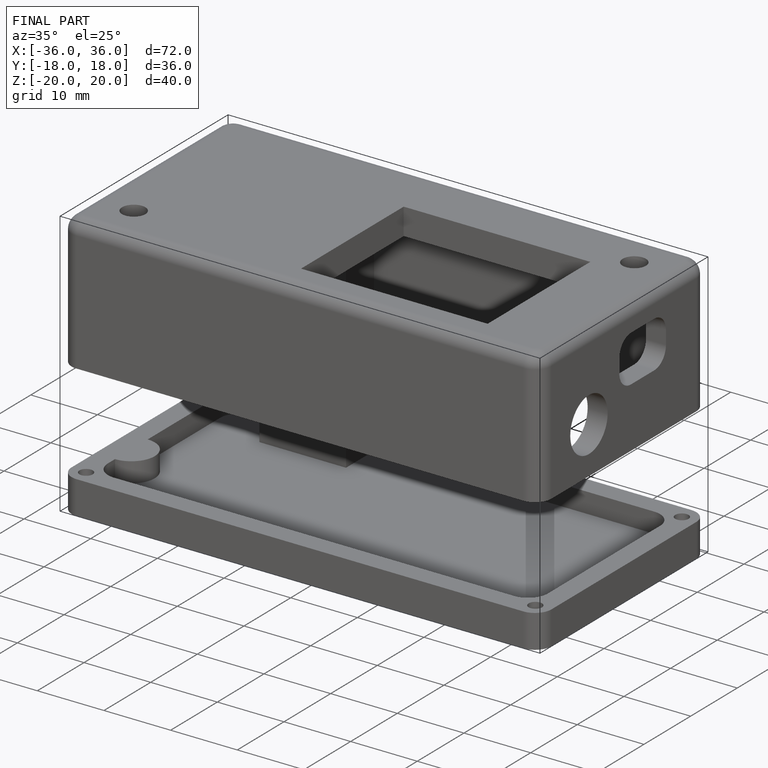
[diagram: finished part — iso view with bounding-box wireframe]
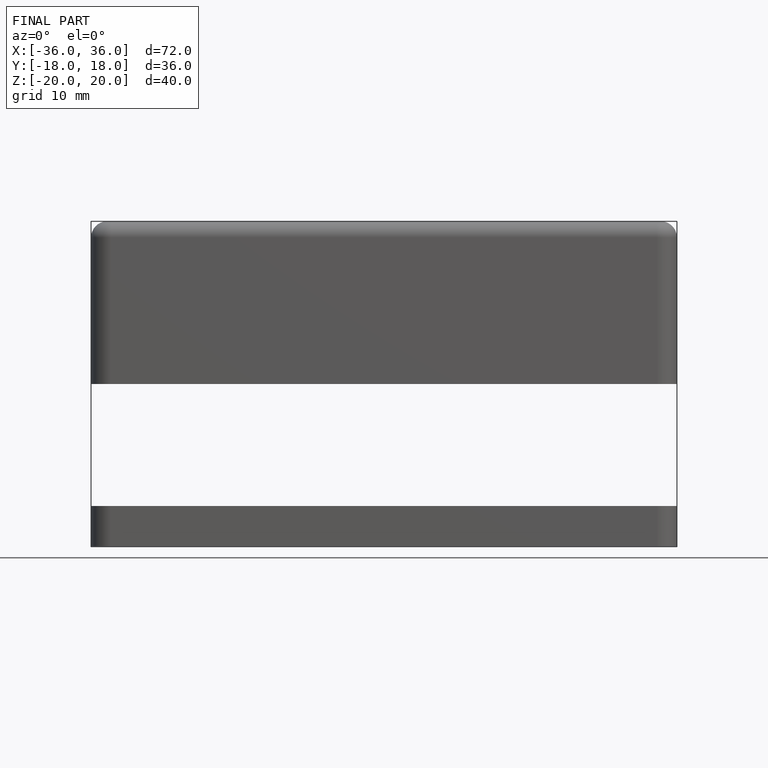
[diagram: finished part — front view with bounding-box wireframe]
